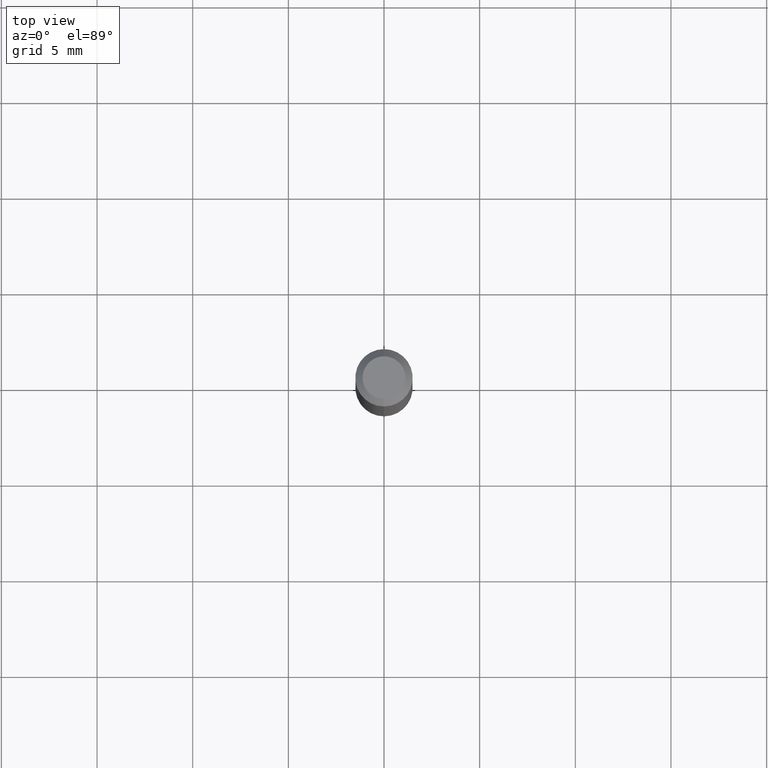
[diagram: clean part render]
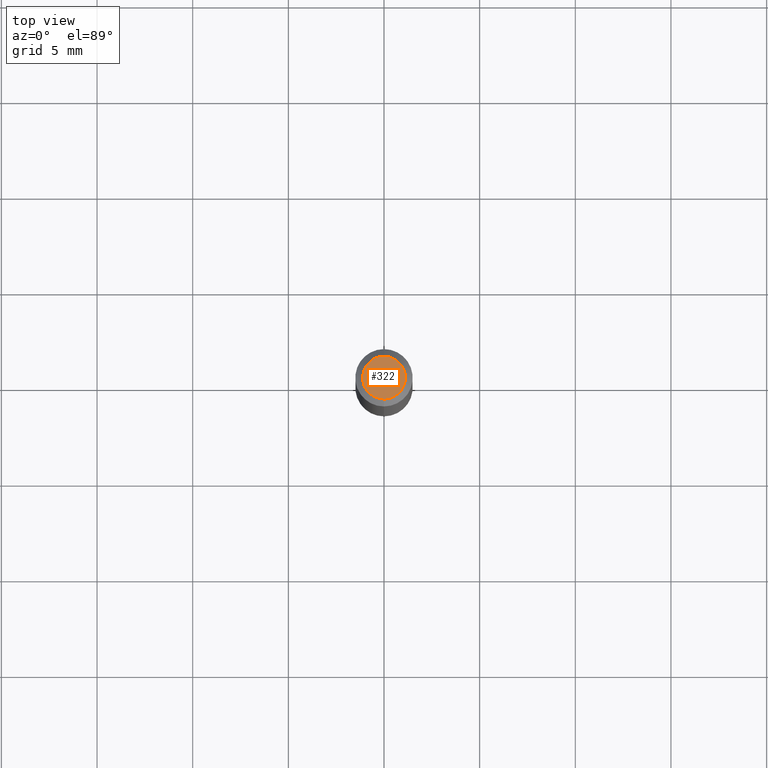
[diagram: same view with one face highlighted and labeled with its STEP entity id]
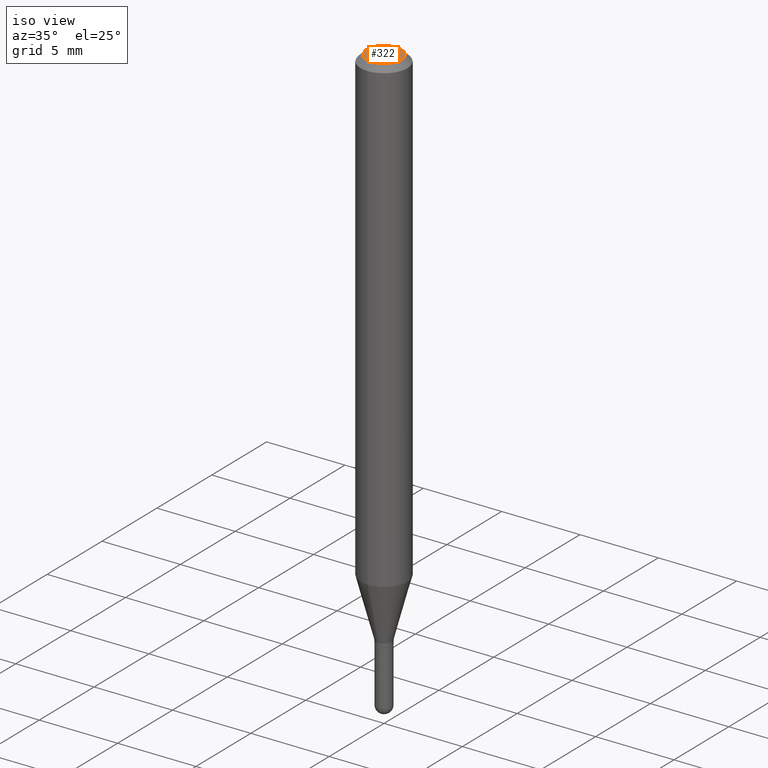
[diagram: same view with one face highlighted and labeled with its STEP entity id]
A machine part, top view. The second image highlights one B-rep face of the part: STEP entity #322.
A second angle (iso view) of the same face is appended — the face is thin or edge-on in the first view.
In plain terms, the highlighted planar face has unit normal (0, -0, -1).
Its self-contained STEP definition (entity closure, byte-faithful):
#5 = AXIS2_PLACEMENT_3D ( 'NONE', #86, #83, #280 ) ;
#72 = PLANE ( 'NONE',  #141 ) ;
#83 = DIRECTION ( 'NONE',  ( -2.446843767584321492E-29, 3.489512315861569973E-15, 1.000000000000000000 ) ) ;
#86 = CARTESIAN_POINT ( 'NONE',  ( 1.037957314455214522E-44, -1.480259949619056811E-30, -4.242025290727700899E-16 ) ) ;
#118 = ORIENTED_EDGE ( 'NONE', *, *, #448, .T. ) ;
#131 = VERTEX_POINT ( 'NONE', #495 ) ;
#132 = CIRCLE ( 'NONE', #5, 0.04405000000000000582 ) ;
#141 = AXIS2_PLACEMENT_3D ( 'NONE', #396, #512, #155 ) ;
#153 = CARTESIAN_POINT ( 'NONE',  ( 1.037957314455214522E-44, -1.480259949619056811E-30, -4.242025290727700899E-16 ) ) ;
#155 = DIRECTION ( 'NONE',  ( 6.982962677686265922E-15, 1.000000000000000000, -3.489512315861569973E-15 ) ) ;
#163 = EDGE_LOOP ( 'NONE', ( #270, #118 ) ) ;
#186 = DIRECTION ( 'NONE',  ( -6.982962677686265133E-15, -1.000000000000000000, 3.489512315861569973E-15 ) ) ;
#243 = VERTEX_POINT ( 'NONE', #478 ) ;
#270 = ORIENTED_EDGE ( 'NONE', *, *, #297, .T. ) ;
#273 = CIRCLE ( 'NONE', #411, 0.04405000000000000582 ) ;
#280 = DIRECTION ( 'NONE',  ( -6.982962677686265133E-15, -1.000000000000000000, 3.489512315861569973E-15 ) ) ;
#297 = EDGE_CURVE ( 'NONE', #131, #243, #273, .T. ) ;
#322 = ADVANCED_FACE ( 'NONE', ( #431 ), #72, .F. ) ;
#353 = DIRECTION ( 'NONE',  ( -2.446843767584321492E-29, 3.489512315861569973E-15, 1.000000000000000000 ) ) ;
#396 = CARTESIAN_POINT ( 'NONE',  ( 3.075995059520800222E-16, 0.04405000000000000582, -3.658142820500872246E-16 ) ) ;
#411 = AXIS2_PLACEMENT_3D ( 'NONE', #153, #353, #186 ) ;
#431 = FACE_OUTER_BOUND ( 'NONE', #163, .T. ) ;
#448 = EDGE_CURVE ( 'NONE', #243, #131, #132, .T. ) ;
#478 = CARTESIAN_POINT ( 'NONE',  ( -3.536586717851222711E-16, -0.04405000000000000582, -2.704895115590679349E-16 ) ) ;
#495 = CARTESIAN_POINT ( 'NONE',  ( 3.599717260347272986E-16, 0.04405000000000000582, -5.779155465864722942E-16 ) ) ;
#512 = DIRECTION ( 'NONE',  ( 2.446843767584321212E-29, -3.489512315861569973E-15, -1.000000000000000000 ) ) ;